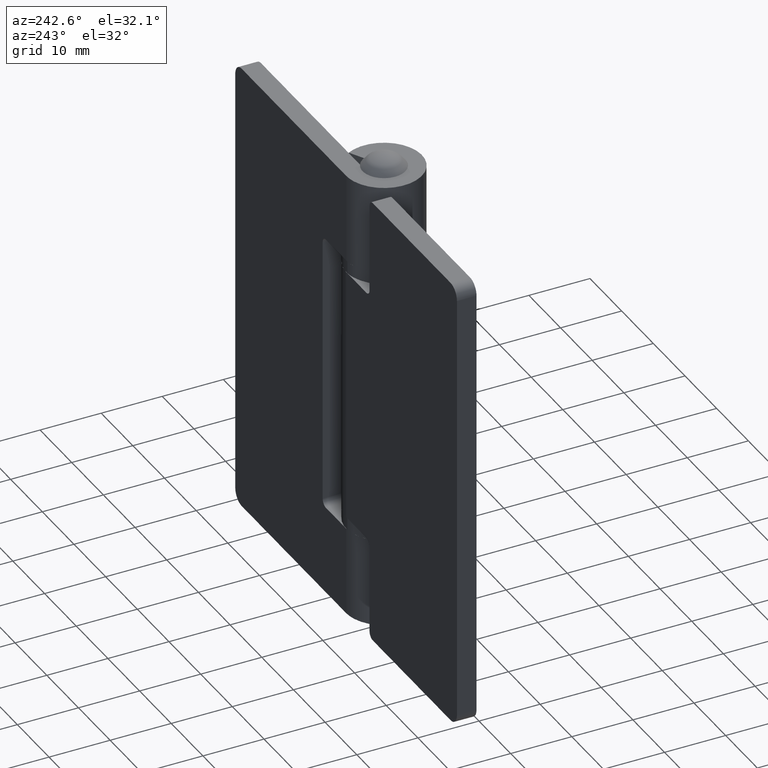
[diagram: clean part render]
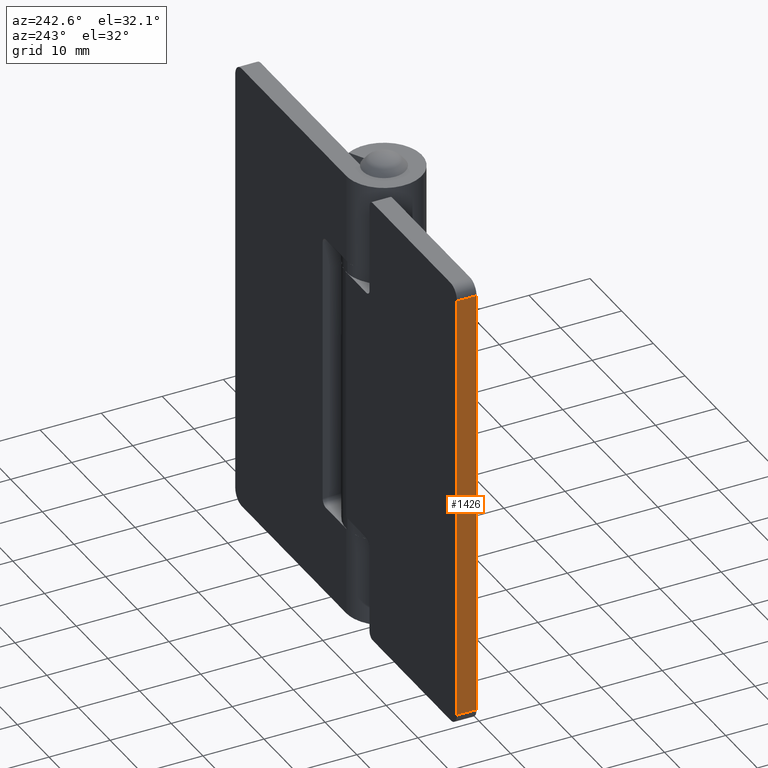
[diagram: same view with one face highlighted and labeled with its STEP entity id]
A machine part, auxiliary view. The second image highlights one B-rep face of the part: STEP entity #1426.
In plain terms, the highlighted face is a freeform B-spline surface patch.
Its self-contained STEP definition (entity closure, byte-faithful):
#1119=CARTESIAN_POINT('',(-35.0,6.200001000000000,73.0));
#1120=VERTEX_POINT('',#1119);
#1136=CARTESIAN_POINT('',(-35.0,3.0,73.0));
#1137=VERTEX_POINT('',#1136);
#1138=CARTESIAN_POINT('',(-35.0,3.0,73.0));
#1139=CARTESIAN_POINT('',(-35.0,6.200001000000000,73.0));
#1140=QUASI_UNIFORM_CURVE('',1,(#1138,#1139),.UNSPECIFIED.,.F.,.U.);
#1141=EDGE_CURVE('',#1137,#1120,#1140,.T.);
#1182=CARTESIAN_POINT('',(-35.0,6.200001000000000,2.0));
#1183=VERTEX_POINT('',#1182);
#1204=CARTESIAN_POINT('',(-35.0,3.0,2.0));
#1205=VERTEX_POINT('',#1204);
#1219=CARTESIAN_POINT('',(-35.0,6.200001000000000,2.0));
#1220=CARTESIAN_POINT('',(-35.0,3.0,2.0));
#1221=QUASI_UNIFORM_CURVE('',1,(#1219,#1220),.UNSPECIFIED.,.F.,.U.);
#1222=EDGE_CURVE('',#1183,#1205,#1221,.T.);
#1407=CARTESIAN_POINT('',(-35.0,2.840159967684873,76.546449862388215));
#1408=CARTESIAN_POINT('',(-35.0,2.840159967684873,-1.546451766756626));
#1409=CARTESIAN_POINT('',(-35.0,6.359840889263936,76.546449862388215));
#1410=CARTESIAN_POINT('',(-35.0,6.359840889263936,-1.546451766756626));
#1411=B_SPLINE_SURFACE_WITH_KNOTS('',1,1,((#1407,#1409),(#1408,#1410)),.UNSPECIFIED.,.F.,.F.,.U.,(2,2),(2,2),(0.0,78.092901629144848),(0.0,3.519680921579062),.UNSPECIFIED.);
#1412=CARTESIAN_POINT('',(-35.0,6.200001000000000,73.0));
#1413=CARTESIAN_POINT('',(-35.0,6.200001000000000,2.0));
#1414=QUASI_UNIFORM_CURVE('',1,(#1412,#1413),.UNSPECIFIED.,.F.,.U.);
#1415=EDGE_CURVE('',#1120,#1183,#1414,.T.);
#1416=ORIENTED_EDGE('',*,*,#1415,.T.);
#1417=ORIENTED_EDGE('',*,*,#1222,.T.);
#1418=CARTESIAN_POINT('',(-35.0,3.0,73.0));
#1419=CARTESIAN_POINT('',(-35.0,3.0,2.0));
#1420=QUASI_UNIFORM_CURVE('',1,(#1418,#1419),.UNSPECIFIED.,.F.,.U.);
#1421=EDGE_CURVE('',#1137,#1205,#1420,.T.);
#1422=ORIENTED_EDGE('',*,*,#1421,.F.);
#1423=ORIENTED_EDGE('',*,*,#1141,.T.);
#1424=EDGE_LOOP('',(#1416,#1417,#1422,#1423));
#1425=FACE_OUTER_BOUND('',#1424,.T.);
#1426=ADVANCED_FACE('',(#1425),#1411,.F.);